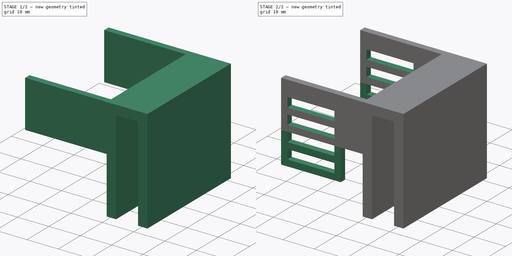
[diagram: build sequence overview — one tinted view per stage of 2, left to right]
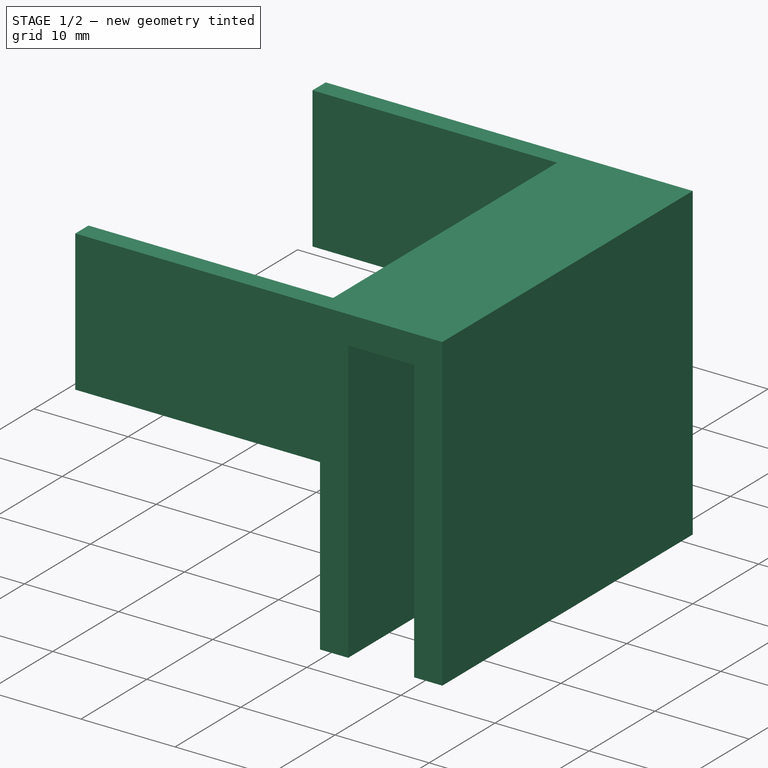
[diagram: stage 1 of 2 — iso view after this stage's code; geometry added in this stage tinted green]
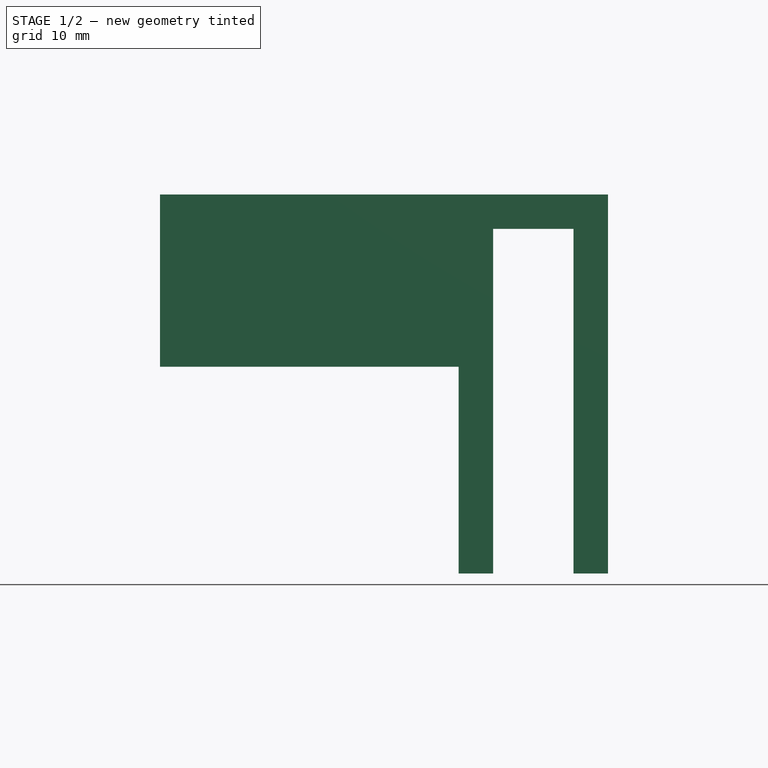
[diagram: stage 1 of 2 — front view after this stage's code; geometry added in this stage tinted green]
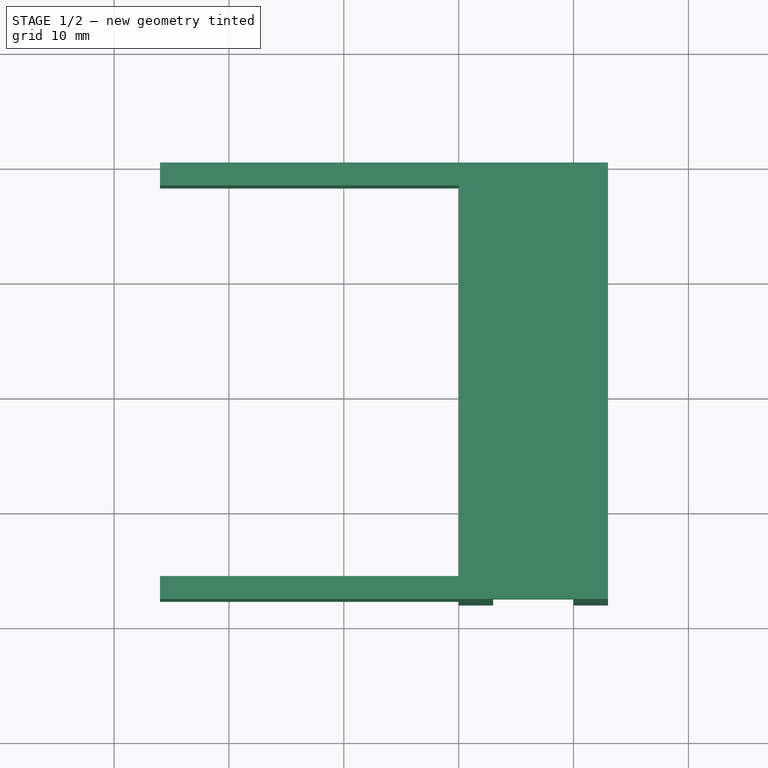
[diagram: stage 1 of 2 — top view after this stage's code; geometry added in this stage tinted green]
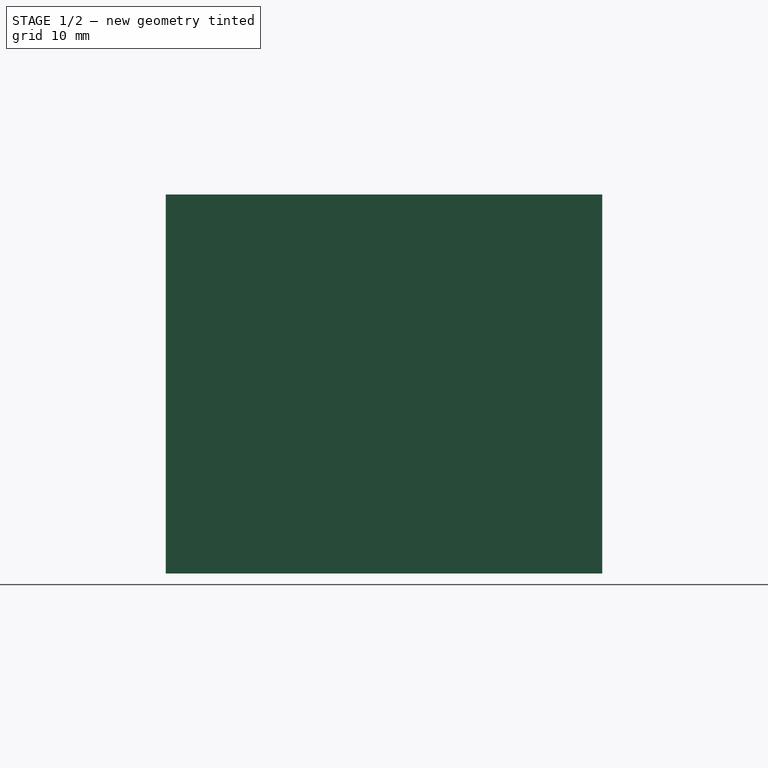
[diagram: stage 1 of 2 — right view after this stage's code; geometry added in this stage tinted green]
FCSTD DOCUMENT  (FreeCAD 0.21R33694 (Git))
Label: FloatSwitchMountV2
License: All rights reserved
LicenseURL: https://en.wikipedia.org/wiki/All_rights_reserved
objects: Sketcher::SketchObject×4, PartDesign::Pad×3, PartDesign::Pocket×1, PartDesign::Body×1
note: 13 computed .brp shape members not serialized (recipe doc carries the construction recipe); baked Part::Feature solids carry a one-line shape summary decoded from their .brp

FEATURE [Sketcher::SketchObject] Sketch
  FullyConstrained = true
  MapMode = 5
  Placement = pos=(0,0,0) rot=(1,0,0;1.5708rad)
  Support = -> [XZ_Plane]
  sketch-geometry (8):
    g0: LineSegment StartX=0 StartY=0 StartZ=0 EndX=0 EndY=33 EndZ=0
    g1: LineSegment StartX=0 StartY=33 StartZ=0 EndX=13 EndY=33 EndZ=0
    g2: LineSegment StartX=13 StartY=33 StartZ=0 EndX=13 EndY=0 EndZ=0
    g3: LineSegment StartX=13 StartY=0 StartZ=0 EndX=10 EndY=0 EndZ=0
    g4: LineSegment StartX=10 StartY=0 StartZ=0 EndX=10 EndY=30 EndZ=0
    g5: LineSegment StartX=10 StartY=30 StartZ=0 EndX=3 EndY=30 EndZ=0
    g6: LineSegment StartX=3 StartY=30 StartZ=0 EndX=3 EndY=0 EndZ=0
    g7: LineSegment StartX=3 StartY=0 StartZ=0 EndX=0 EndY=0 EndZ=0
  constraints (23):
    c: Coincident(g-1,g0)
    c: PointOnObject(g0,g-2)
    c: Coincident(g0,g1)
    c: Horizontal(g1)
    c: Coincident(g1,g2)
    c: PointOnObject(g2,g-1)
    c: Vertical(g2)
    c: Coincident(g2,g3)
    c: Coincident(g3,g4)
    c: Vertical(g4)
    c: Coincident(g4,g5)
    c: Horizontal(g5)
    c: Coincident(g5,g6)
    c: PointOnObject(g6,g-1)
    c: Vertical(g6)
    c: Coincident(g6,g7)
    c: Coincident(g7,g0)
    c: DistanceY(g0,g0) = 33
    c: DistanceY(g6,g6) = 30
    c: DistanceX(g7,g7) = 3
    c: DistanceX(g3,g3) = 3
    c: DistanceX(g5,g5) = 7
    c: DistanceY(g4,g4) = 30
FEATURE [PartDesign::Pad] Pad
  Direction = (0,-1,-2e-16)
  Length = 38
  Length2 = 10
  Placement = pos=(0,0,0) rot=(1,0,0;1.5708rad)
  Profile = -> Sketch
  ReferenceAxis = -> Sketch [N_Axis]
  Type = 0
FEATURE [Sketcher::SketchObject] Sketch001
  FullyConstrained = true
  MapMode = 5
  Placement = pos=(0,0,0) rot=(0.707107,0,-0.707107;3.14159rad)
  Support = -> [Pad]
  sketch-geometry (8):
    g0: LineSegment StartX=-33 StartY=38 StartZ=0 EndX=-18 EndY=38 EndZ=0
    g1: LineSegment StartX=-18 StartY=38 StartZ=0 EndX=-18 EndY=36 EndZ=0
    g2: LineSegment StartX=-18 StartY=36 StartZ=0 EndX=-33 EndY=36 EndZ=0
    g3: LineSegment StartX=-33 StartY=36 StartZ=0 EndX=-33 EndY=38 EndZ=0
    g4: LineSegment StartX=-33 StartY=0 StartZ=0 EndX=-18 EndY=0 EndZ=0
    g5: LineSegment StartX=-18 StartY=0 StartZ=0 EndX=-18 EndY=2 EndZ=0
    g6: LineSegment StartX=-18 StartY=2 StartZ=0 EndX=-33 EndY=2 EndZ=0
    g7: LineSegment StartX=-33 StartY=2 StartZ=0 EndX=-33 EndY=0 EndZ=0
  constraints (24):
    c: Coincident(g0,g1)
    c: Coincident(g1,g2)
    c: Coincident(g2,g3)
    c: Coincident(g3,g0)
    c: Horizontal(g0)
    c: Horizontal(g2)
    c: Vertical(g1)
    c: Vertical(g3)
    c: Coincident(g4,g5)
    c: Coincident(g5,g6)
    c: Coincident(g6,g7)
    c: Coincident(g7,g4)
    c: Horizontal(g4)
    c: Horizontal(g6)
    c: Vertical(g5)
    c: Vertical(g7)
    c: PointOnObject(g4,g-1)
    c: DistanceY(g1,g1) = 2
    c: DistanceY(g5,g5) = 2
    c: DistanceY(g-1,g0) = 38
    c: DistanceX(g2,g-1) = 33
    c: DistanceX(g2,g2) = 15
    c: DistanceX(g4,g4) = 15
    c: DistanceX(g4,g-1) = 33
FEATURE [PartDesign::Pad] Pad001
  BaseFeature = -> Pad
  Direction = (-1,0,-2e-16)
  Length = 26
  Length2 = 10
  Placement = pos=(0,0,0) rot=(1,0,0;1.5708rad)
  Profile = -> Sketch001
  ReferenceAxis = -> Sketch001 [N_Axis]
  Type = 0
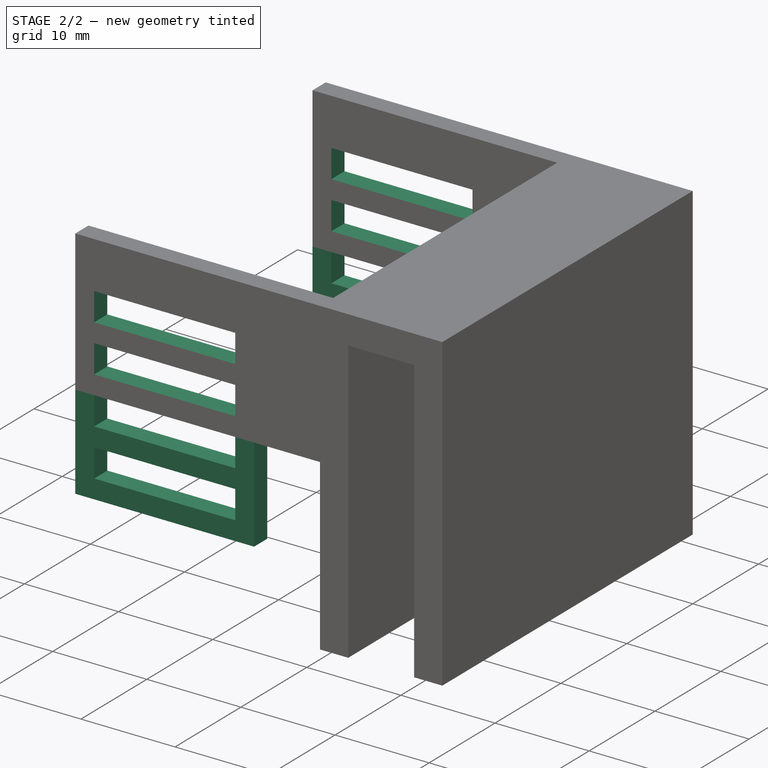
[diagram: stage 2 of 2 — iso view after this stage's code; geometry added in this stage tinted green]
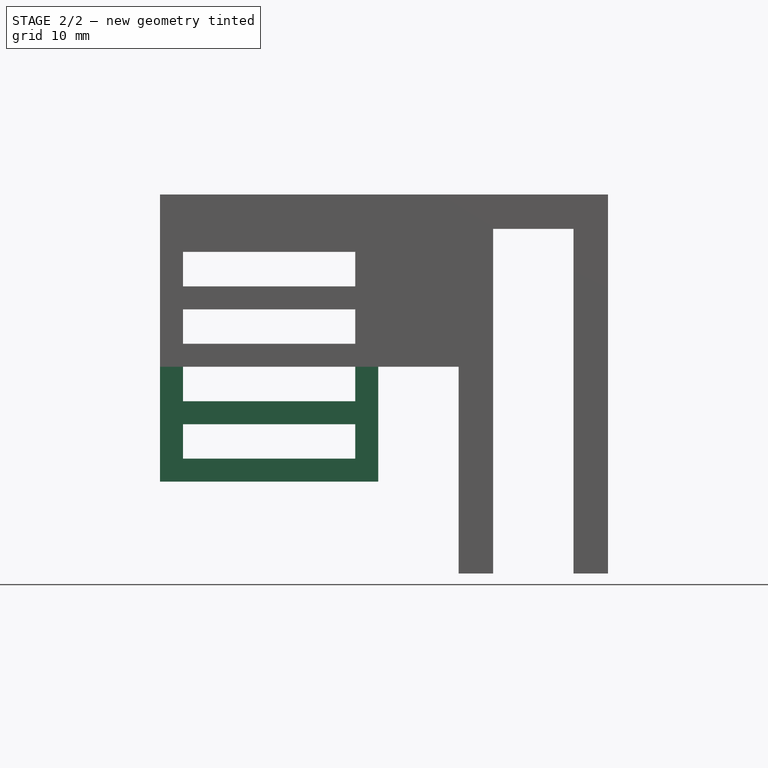
[diagram: stage 2 of 2 — front view after this stage's code; geometry added in this stage tinted green]
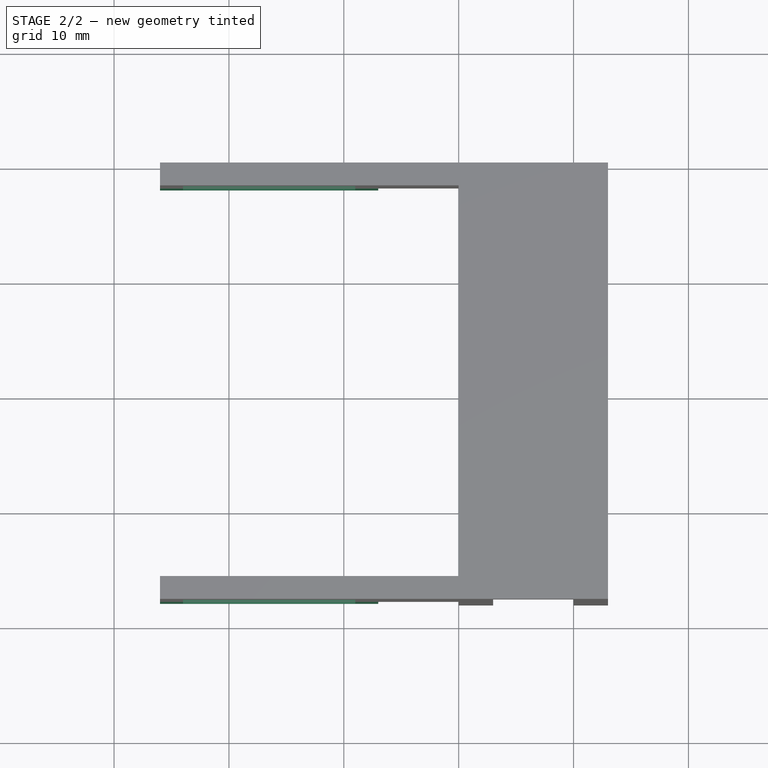
[diagram: stage 2 of 2 — top view after this stage's code; geometry added in this stage tinted green]
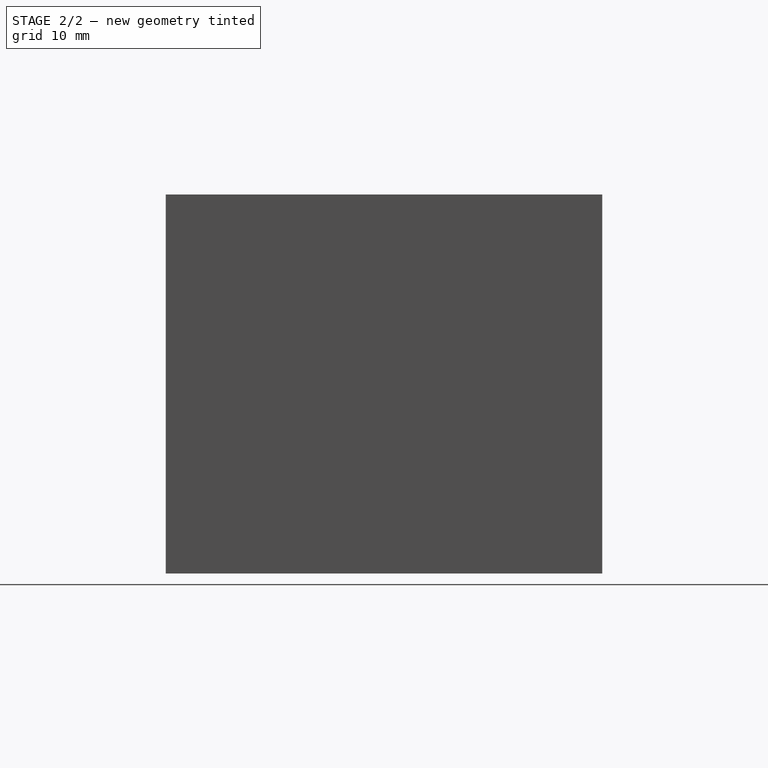
[diagram: stage 2 of 2 — right view after this stage's code; geometry added in this stage tinted green]
FEATURE [Sketcher::SketchObject] Sketch002
  FullyConstrained = true
  MapMode = 5
  Placement = pos=(-4e-15,-4e-15,18) rot=(1,0,0;3.14159rad)
  Support = -> [Pad001]
  sketch-geometry (8):
    g0: LineSegment StartX=-26 StartY=36 StartZ=0 EndX=-7 EndY=36 EndZ=0
    g1: LineSegment StartX=-7 StartY=36 StartZ=0 EndX=-7 EndY=38 EndZ=0
    g2: LineSegment StartX=-7 StartY=38 StartZ=0 EndX=-26 EndY=38 EndZ=0
    g3: LineSegment StartX=-26 StartY=38 StartZ=0 EndX=-26 EndY=36 EndZ=0
    g4: LineSegment StartX=-26 StartY=2 StartZ=0 EndX=-7 EndY=2 EndZ=0
    g5: LineSegment StartX=-7 StartY=2 StartZ=0 EndX=-7 EndY=0 EndZ=0
    g6: LineSegment StartX=-7 StartY=0 StartZ=0 EndX=-26 EndY=0 EndZ=0
    g7: LineSegment StartX=-26 StartY=0 StartZ=0 EndX=-26 EndY=2 EndZ=0
  constraints (24):
    c: Coincident(g0,g1)
    c: Coincident(g1,g2)
    c: Coincident(g2,g3)
    c: Coincident(g3,g0)
    c: Horizontal(g0)
    c: Horizontal(g2)
    c: Vertical(g1)
    c: Vertical(g3)
    c: Coincident(g4,g5)
    c: Coincident(g5,g6)
    c: Coincident(g6,g7)
    c: Coincident(g7,g4)
    c: Horizontal(g4)
    c: Horizontal(g6)
    c: Vertical(g5)
    c: Vertical(g7)
    c: DistanceY(g1,g1) = 2
    c: DistanceY(g5,g5) = 2
    c: DistanceY(g-1,g5) = 0
    c: DistanceY(g-1,g0) = 36
    c: DistanceX(g2,g2) = 19
    c: DistanceX(g4,g4) = 19
    c: DistanceX(g0,g-1) = 26
    c: DistanceX(g6,g-1) = 26
FEATURE [PartDesign::Pad] Pad002
  BaseFeature = -> Pad001
  Direction = (2e-16,2e-16,-1)
  Length = 10
  Length2 = 10
  Placement = pos=(0,0,0) rot=(1,0,0;1.5708rad)
  Profile = -> Sketch002
  ReferenceAxis = -> Sketch002 [N_Axis]
  Type = 0
FEATURE [Sketcher::SketchObject] Sketch003
  FullyConstrained = true
  MapMode = 5
  Placement = pos=(0,-38,-8.4e-15) rot=(1,0,0;1.5708rad)
  Support = -> [Pad002]
  sketch-geometry (17):
    g0: LineSegment StartX=-24 StartY=10 StartZ=0 EndX=-9 EndY=10 EndZ=0
    g1: LineSegment StartX=-9 StartY=10 StartZ=0 EndX=-9 EndY=13 EndZ=0
    g2: LineSegment StartX=-9 StartY=13 StartZ=0 EndX=-24 EndY=13 EndZ=0
    g3: LineSegment StartX=-24 StartY=13 StartZ=0 EndX=-24 EndY=10 EndZ=0
    g4: LineSegment StartX=-24 StartY=15 StartZ=0 EndX=-9 EndY=15 EndZ=0
    g5: LineSegment StartX=-9 StartY=15 StartZ=0 EndX=-9 EndY=18 EndZ=0
    g6: LineSegment StartX=-9 StartY=18 StartZ=0 EndX=-24 EndY=18 EndZ=0
    g7: LineSegment StartX=-24 StartY=18 StartZ=0 EndX=-24 EndY=15 EndZ=0
    g8: LineSegment StartX=-24 StartY=20 StartZ=0 EndX=-9 EndY=20 EndZ=0
    g9: LineSegment StartX=-9 StartY=20 StartZ=0 EndX=-9 EndY=23 EndZ=0
    g10: LineSegment StartX=-9 StartY=23 StartZ=0 EndX=-24 EndY=23 EndZ=0
    g11: LineSegment StartX=-24 StartY=23 StartZ=0 EndX=-24 EndY=20 EndZ=0
    g12: LineSegment StartX=-24 StartY=25 StartZ=0 EndX=-9 EndY=25 EndZ=0
    g13: LineSegment StartX=-9 StartY=25 StartZ=0 EndX=-9 EndY=28 EndZ=0
    g14: LineSegment StartX=-9 StartY=28 StartZ=0 EndX=-24 EndY=28 EndZ=0
    g15: LineSegment StartX=-24 StartY=28 StartZ=0 EndX=-24 EndY=25 EndZ=0
    g16: GeomPoint X=-7 Y=8 Z=0
  constraints (50):
    c: Coincident(g0,g1)
    c: Coincident(g1,g2)
    c: Coincident(g2,g3)
    c: Coincident(g3,g0)
    c: Horizontal(g0)
    c: Horizontal(g2)
    c: Vertical(g1)
    c: Vertical(g3)
    c: Coincident(g4,g5)
    c: Coincident(g5,g6)
    c: Coincident(g6,g7)
    c: Coincident(g7,g4)
    c: Horizontal(g4)
    c: Horizontal(g6)
    c: Vertical(g5)
    c: Vertical(g7)
    c: Coincident(g8,g9)
    c: Coincident(g9,g10)
    c: Coincident(g10,g11)
    c: Coincident(g11,g8)
    c: Horizontal(g8)
    c: Horizontal(g10)
    c: Vertical(g9)
    c: Vertical(g11)
    c: Coincident(g12,g13)
    c: Coincident(g13,g14)
    c: Coincident(g14,g15)
    c: Coincident(g15,g12)
    c: Horizontal(g12)
    c: Horizontal(g14)
    c: Vertical(g13)
    c: Vertical(g15)
    c: DistanceY(g1,g1) = 3
    c: DistanceY(g5,g5) = 3
    c: DistanceY(g9,g9) = 3
    c: DistanceY(g13,g13) = 3
    c: DistanceX(g14,g14) = 15
    c: DistanceX(g10,g10) = 15
    c: DistanceX(g6,g6) = 15
    c: DistanceX(g2,g2) = 15
    c: DistanceX(g16,g-1) = 7
    c: DistanceY(g-1,g16) = 8
    c: DistanceX(g0,g16) = 2
    c: DistanceX(g4,g16) = 2
    c: DistanceX(g8,g16) = 2
    c: DistanceX(g12,g16) = 2
    c: DistanceY(g16,g0) = 2
    c: DistanceY(g16,g4) = 7
    c: DistanceY(g16,g8) = 12
    c: DistanceY(g16,g12) = 17
FEATURE [PartDesign::Pocket] Pocket
  BaseFeature = -> Pad002
  Direction = (0,1,2e-16)
  Length = 40
  Length2 = 5
  Placement = pos=(0,0,0) rot=(1,0,0;1.5708rad)
  Profile = -> Sketch003
  ReferenceAxis = -> Sketch003 [N_Axis]
  Type = 0
FEATURE [PartDesign::Body] Body
  Group = -> [Sketch,Pad,Sketch001,Pad001,Sketch002,Pad002,Sketch003,Pocket]
  Origin = -> Origin
  Tip = -> Pocket
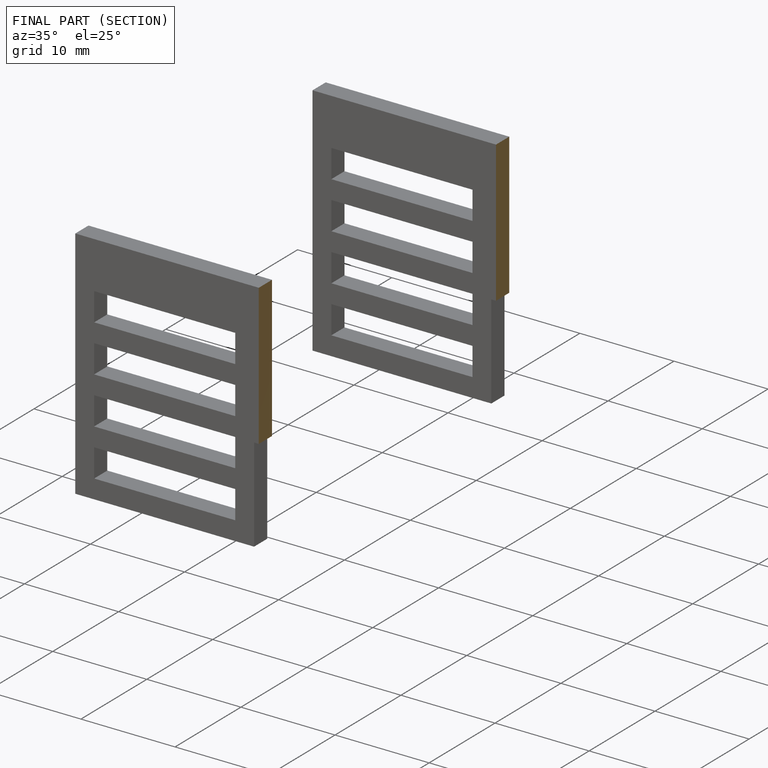
[diagram: finished part — half-section view (interior)]
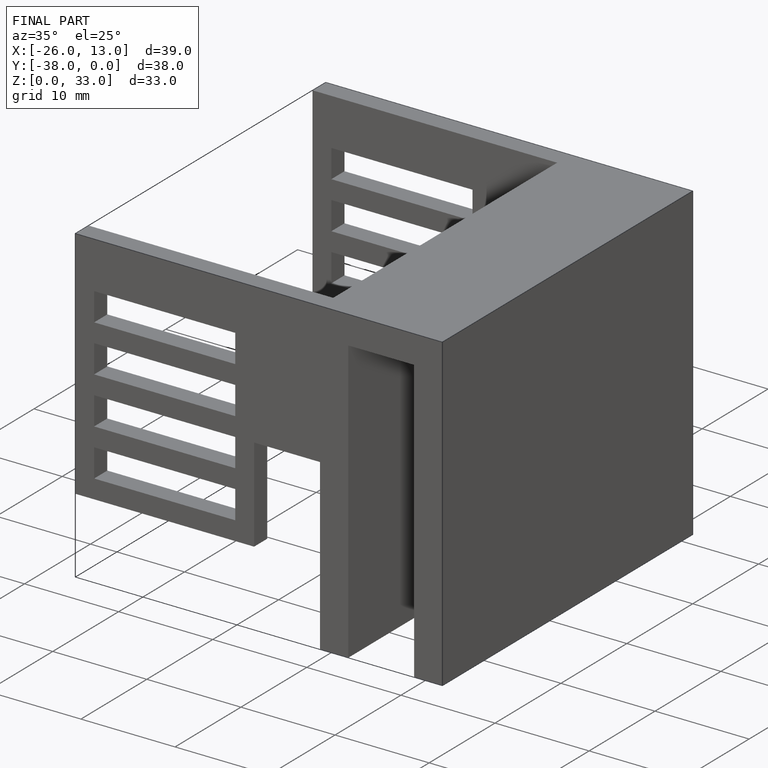
[diagram: finished part — iso view with bounding-box wireframe]
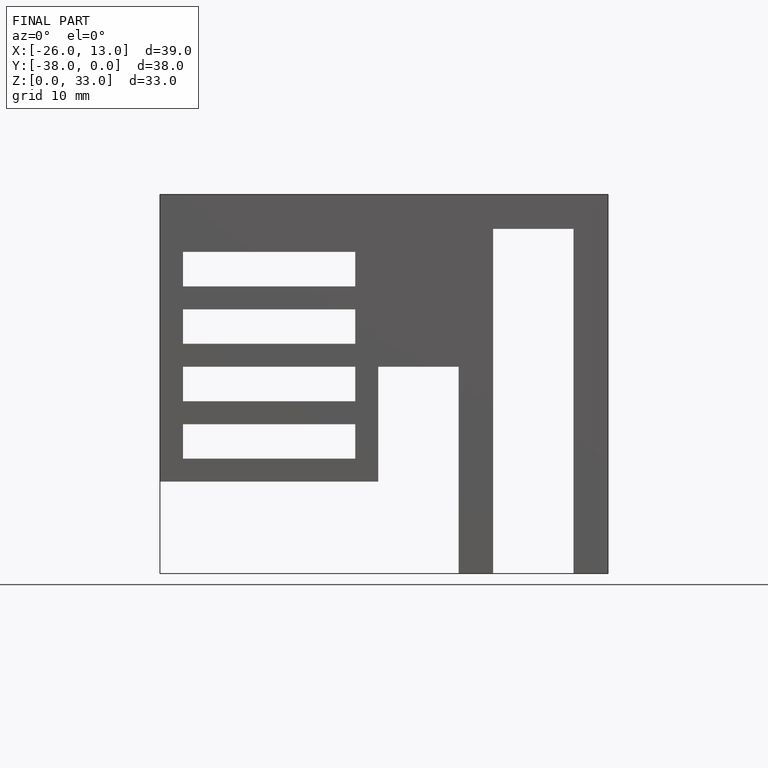
[diagram: finished part — front view with bounding-box wireframe]
